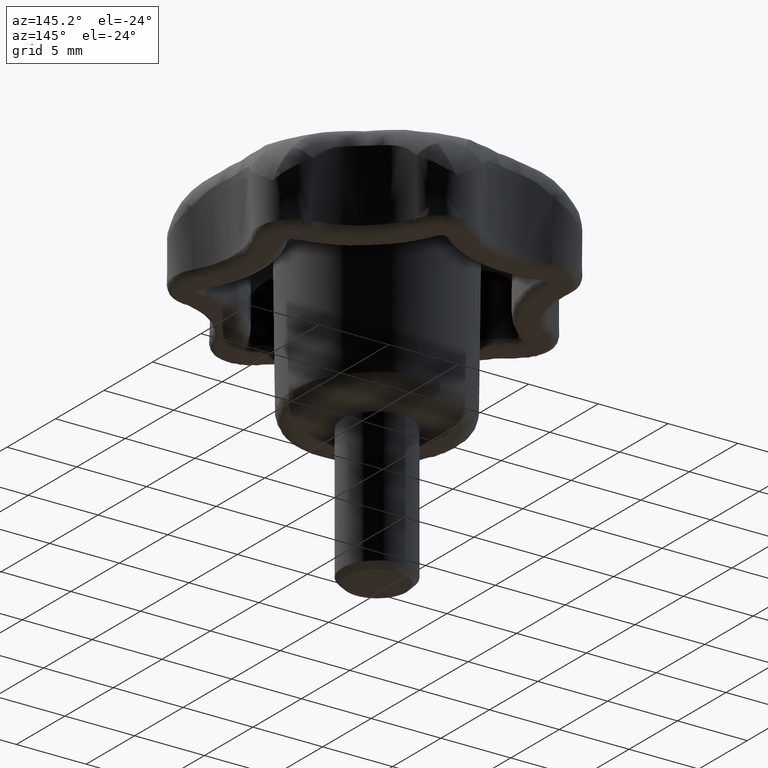
[diagram: clean part render]
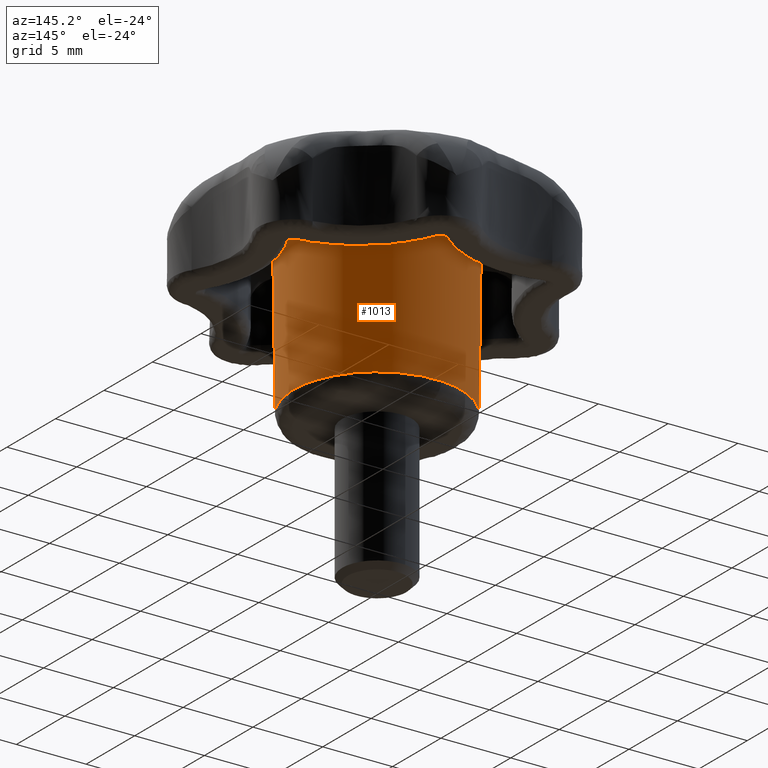
[diagram: same view with one face highlighted and labeled with its STEP entity id]
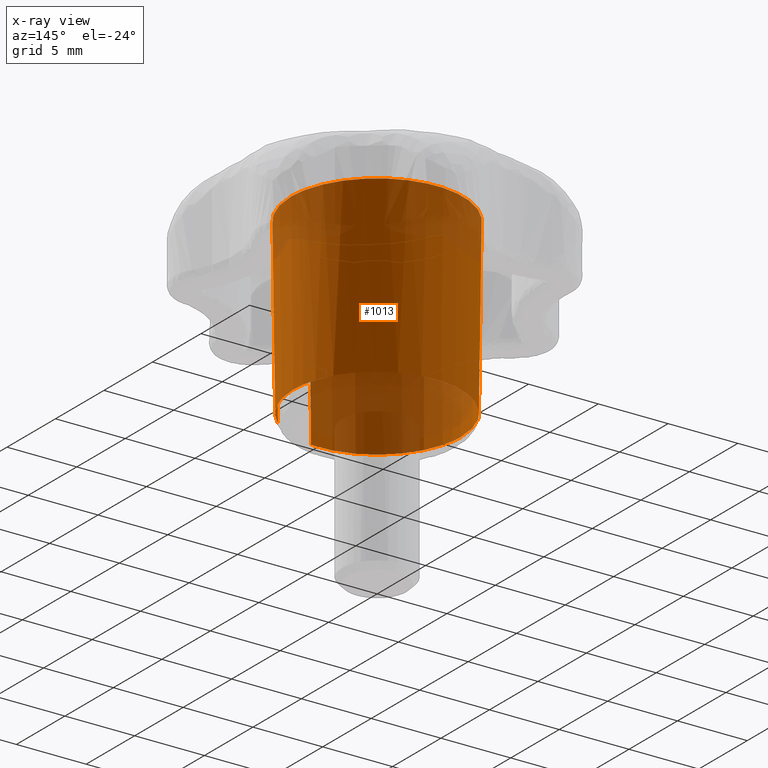
[diagram: x-ray of the same camera — body ghosted, the highlighted face saturated]
A machine part, auxiliary view. The second image highlights one B-rep face of the part: STEP entity #1013.
The next image is the same camera in x-ray: the body ghosted, the highlighted face saturated — about 38% of this face is hidden behind the body in this view.
In plain terms, the highlighted face is a freeform B-spline surface patch.
Its self-contained STEP definition (entity closure, byte-faithful):
#843=CARTESIAN_POINT('',(3.944172478707790,-4.532687497300083,-7.322148561508060));
#844=CARTESIAN_POINT('',(6.277231158324103,-2.502548459293557,-7.322148561508059));
#845=CARTESIAN_POINT('',(5.980811571360390,0.575886653655120,-7.322148561508059));
#846=CARTESIAN_POINT('',(5.404924917705270,6.556698225015510,-7.322148561508059));
#847=CARTESIAN_POINT('',(-0.575886653655120,5.980811571360390,-7.322148561508059));
#848=CARTESIAN_POINT('',(-6.556698225015510,5.404924917705270,-7.322148561508059));
#849=CARTESIAN_POINT('',(-5.980811571360390,-0.575886653655120,-7.322148561508059));
#850=CARTESIAN_POINT('',(-5.404924917705270,-6.556698225015510,-7.322148561508059));
#851=CARTESIAN_POINT('',(0.575886653655120,-5.980811571360390,-7.322148561508059));
#852=CARTESIAN_POINT('',(4.050949741576948,-4.655397132088043,5.690874260871853));
#853=CARTESIAN_POINT('',(6.447169355779006,-2.570297848074938,5.690874260871852));
#854=CARTESIAN_POINT('',(6.142725050746383,0.591477148475549,5.690874260871852));
#855=CARTESIAN_POINT('',(5.551247902270834,6.734202199221930,5.690874260871852));
#856=CARTESIAN_POINT('',(-0.591477148475549,6.142725050746383,5.690874260871852));
#857=CARTESIAN_POINT('',(-6.734202199221930,5.551247902270834,5.690874260871852));
#858=CARTESIAN_POINT('',(-6.142725050746383,-0.591477148475549,5.690874260871852));
#859=CARTESIAN_POINT('',(-5.551247902270834,-6.734202199221930,5.690874260871852));
#860=CARTESIAN_POINT('',(0.591477148475549,-6.142725050746383,5.690874260871852));
#868=(BOUNDED_SURFACE()B_SPLINE_SURFACE(2,1,((#843,#852),(#844,#853),(#845,#854),(#846,#855),(#847,#856),(#848,#857),(#849,#858),(#850,#859),(#851,#860)),.UNSPECIFIED.,.F.,.F.,.U.)B_SPLINE_SURFACE_WITH_KNOTS((3,2,2,2,3),(2,2),(0.0,6.134803480556286,16.359475948150099,26.584148415743911,36.808820883337717),(0.0,13.014039419569780),.UNSPECIFIED.)GEOMETRIC_REPRESENTATION_ITEM()RATIONAL_B_SPLINE_SURFACE(((0.859411254969543,0.859411254969543),(0.824264068711928,0.824264068711928),(1.0,1.0),(0.707106781186548,0.707106781186548),(1.0,1.0),(0.707106781186548,0.707106781186548),(1.0,1.0),(0.707106781186548,0.707106781186548),(1.0,1.0)))REPRESENTATION_ITEM('')SURFACE());
#869=CARTESIAN_POINT('',(6.012344000000111,0.0,-7.012498999999910));
#870=VERTEX_POINT('',#869);
#871=CARTESIAN_POINT('',(3.946712926027035,-4.535607724337785,-7.012499164965030));
#872=VERTEX_POINT('',#871);
#873=CARTESIAN_POINT('',(6.012344000000111,0.0,-7.012498999999910));
#874=CARTESIAN_POINT('',(6.012344000000111,-2.738174600577706,-7.012498999999912));
#875=CARTESIAN_POINT('',(3.946712926027036,-4.535607724337786,-7.012499164965030));
#883=(BOUNDED_CURVE()B_SPLINE_CURVE(2,(#873,#874,#875),.UNSPECIFIED.,.F.,.U.)B_SPLINE_CURVE_WITH_KNOTS((3,3),(0.500000000000000,0.635463014936708),.UNSPECIFIED.)CURVE()GEOMETRIC_REPRESENTATION_ITEM()RATIONAL_B_SPLINE_CURVE((1.0,0.841295206100052,0.854579451132870))REPRESENTATION_ITEM(''));
#884=EDGE_CURVE('',#870,#872,#883,.T.);
#885=ORIENTED_EDGE('',*,*,#884,.F.);
#886=CARTESIAN_POINT('',(-0.419260292708635,5.997707936092185,-7.012498999311438));
#887=VERTEX_POINT('',#886);
#888=CARTESIAN_POINT('',(-0.419260292708635,5.997707936092186,-7.012498999311440));
#889=CARTESIAN_POINT('',(-0.209885613401548,6.012344000000111,-7.012498999999910));
#890=CARTESIAN_POINT('',(0.0,6.012344000000111,-7.012498999999910));
#891=CARTESIAN_POINT('',(6.012344000000110,6.012344000000110,-7.012498999999909));
#892=CARTESIAN_POINT('',(6.012344000000111,0.0,-7.012498999999910));
#900=(BOUNDED_CURVE()B_SPLINE_CURVE(2,(#888,#889,#890,#891,#892),.UNSPECIFIED.,.F.,.U.)B_SPLINE_CURVE_WITH_KNOTS((3,2,3),(0.237833686533596,0.250000000000000,0.500000000000000),.UNSPECIFIED.)CURVE()GEOMETRIC_REPRESENTATION_ITEM()RATIONAL_B_SPLINE_CURVE((0.972879876383814,0.985746277150927,1.0,0.707106781186547,1.0))REPRESENTATION_ITEM(''));
#901=EDGE_CURVE('',#887,#870,#900,.T.);
#902=ORIENTED_EDGE('',*,*,#901,.F.);
#903=CARTESIAN_POINT('',(-6.012344000000111,0.0,-7.012498999999910));
#904=VERTEX_POINT('',#903);
#905=CARTESIAN_POINT('',(-6.012344000000111,0.0,-7.012498999999910));
#906=CARTESIAN_POINT('',(-6.012344000000111,5.606732318392219,-7.012498999999909));
#907=CARTESIAN_POINT('',(-0.419260292708635,5.997707936092185,-7.012498999311438));
#915=(BOUNDED_CURVE()B_SPLINE_CURVE(2,(#905,#906,#907),.UNSPECIFIED.,.F.,.U.)B_SPLINE_CURVE_WITH_KNOTS((3,3),(0.0,0.237833686533597),.UNSPECIFIED.)CURVE()GEOMETRIC_REPRESENTATION_ITEM()RATIONAL_B_SPLINE_CURVE((1.0,0.721360504035621,0.972879876383814))REPRESENTATION_ITEM(''));
#916=EDGE_CURVE('',#904,#887,#915,.T.);
#917=ORIENTED_EDGE('',*,*,#916,.F.);
#918=CARTESIAN_POINT('',(-6.011869232829693,-0.075551353800041,-7.012498999311493));
#919=VERTEX_POINT('',#918);
#920=CARTESIAN_POINT('',(-6.011869232829693,-0.075551353800041,-7.012498999311494));
#921=CARTESIAN_POINT('',(-6.012344000000111,-0.037777168640943,-7.012498999999909));
#922=CARTESIAN_POINT('',(-6.012344000000111,0.0,-7.012498999999910));
#930=(BOUNDED_CURVE()B_SPLINE_CURVE(2,(#920,#921,#922),.UNSPECIFIED.,.F.,.U.)B_SPLINE_CURVE_WITH_KNOTS((3,3),(0.997784295920002,1.0),.UNSPECIFIED.)CURVE()GEOMETRIC_REPRESENTATION_ITEM()RATIONAL_B_SPLINE_CURVE((0.994854295640039,0.997404141200285,1.0))REPRESENTATION_ITEM(''));
#931=EDGE_CURVE('',#919,#904,#930,.T.);
#932=ORIENTED_EDGE('',*,*,#931,.F.);
#933=CARTESIAN_POINT('',(0.576250075798280,-5.984665085467016,-7.012499260891778));
#934=VERTEX_POINT('',#933);
#935=CARTESIAN_POINT('',(0.576250075798280,-5.984665085467016,-7.012499260891778));
#936=CARTESIAN_POINT('',(0.288789786019711,-6.012344000000111,-7.012498999999910));
#937=CARTESIAN_POINT('',(0.0,-6.012344000000111,-7.012498999999910));
#938=CARTESIAN_POINT('',(-5.937261426648448,-6.012344000000110,-7.012498999999909));
#939=CARTESIAN_POINT('',(-6.011869232829693,-0.075551353800041,-7.012498999311494));
#947=(BOUNDED_CURVE()B_SPLINE_CURVE(2,(#935,#936,#937,#938,#939),.UNSPECIFIED.,.F.,.U.)B_SPLINE_CURVE_WITH_KNOTS((3,2,3),(0.733349119913495,0.750000000000000,0.997784295920001),.UNSPECIFIED.)CURVE()GEOMETRIC_REPRESENTATION_ITEM()RATIONAL_B_SPLINE_CURVE((0.963583126662804,0.980492280541546,1.0,0.709702639986264,0.994854295640036))REPRESENTATION_ITEM(''));
#948=EDGE_CURVE('',#934,#919,#947,.T.);
#949=ORIENTED_EDGE('',*,*,#948,.F.);
#950=CARTESIAN_POINT('',(0.591088502713179,-6.138776745641636,5.373483166893277));
#951=VERTEX_POINT('',#950);
#952=CARTESIAN_POINT('',(0.576250075798280,-5.984665085467016,-7.012499260891778));
#953=CARTESIAN_POINT('',(0.591088502713179,-6.138776745641636,5.373483166893277));
#954=QUASI_UNIFORM_CURVE('',1,(#952,#953),.UNSPECIFIED.,.F.,.U.);
#955=EDGE_CURVE('',#934,#951,#954,.T.);
#956=ORIENTED_EDGE('',*,*,#955,.T.);
#957=CARTESIAN_POINT('',(-6.167168361264539,0.0,5.373483460326000));
#958=VERTEX_POINT('',#957);
#959=CARTESIAN_POINT('',(0.591088502713179,-6.138776745641636,5.373483166893277));
#960=CARTESIAN_POINT('',(0.296226115268660,-6.167168361264539,5.373483460326001));
#961=CARTESIAN_POINT('',(0.0,-6.167168361264539,5.373483460326000));
#962=CARTESIAN_POINT('',(-6.167168361264539,-6.167168361264539,5.373483460325999));
#963=CARTESIAN_POINT('',(-6.167168361264539,0.0,5.373483460326000));
#971=(BOUNDED_CURVE()B_SPLINE_CURVE(2,(#959,#960,#961,#962,#963),.UNSPECIFIED.,.F.,.U.)B_SPLINE_CURVE_WITH_KNOTS((3,2,3),(0.733349137555922,0.750000000000000,1.0),.UNSPECIFIED.)CURVE()GEOMETRIC_REPRESENTATION_ITEM()RATIONAL_B_SPLINE_CURVE((0.963583162494970,0.980492301210936,1.0,0.707106781186548,1.0))REPRESENTATION_ITEM(''));
#972=EDGE_CURVE('',#951,#958,#971,.T.);
#973=ORIENTED_EDGE('',*,*,#972,.T.);
#974=CARTESIAN_POINT('',(6.167168361264539,0.0,5.373483460326000));
#975=VERTEX_POINT('',#974);
#976=CARTESIAN_POINT('',(-6.167168361264539,0.0,5.373483460326000));
#977=CARTESIAN_POINT('',(-6.167168361264539,6.167168361264539,5.373483460325999));
#978=CARTESIAN_POINT('',(0.0,6.167168361264539,5.373483460326000));
#979=CARTESIAN_POINT('',(6.167168361264539,6.167168361264539,5.373483460325999));
#980=CARTESIAN_POINT('',(6.167168361264539,0.0,5.373483460326000));
#988=(BOUNDED_CURVE()B_SPLINE_CURVE(2,(#976,#977,#978,#979,#980),.UNSPECIFIED.,.F.,.U.)B_SPLINE_CURVE_WITH_KNOTS((3,2,3),(0.0,0.250000000000000,0.500000000000000),.UNSPECIFIED.)CURVE()GEOMETRIC_REPRESENTATION_ITEM()RATIONAL_B_SPLINE_CURVE((1.0,0.707106781186548,1.0,0.707106781186548,1.0))REPRESENTATION_ITEM(''));
#989=EDGE_CURVE('',#958,#975,#988,.T.);
#990=ORIENTED_EDGE('',*,*,#989,.T.);
#991=CARTESIAN_POINT('',(4.048344640766153,-4.652404884435452,5.373483090350323));
#992=VERTEX_POINT('',#991);
#993=CARTESIAN_POINT('',(6.167168361264539,0.0,5.373483460326000));
#994=CARTESIAN_POINT('',(6.167168361264539,-2.808685595561269,5.373483460326001));
#995=CARTESIAN_POINT('',(4.048344640766153,-4.652404884435452,5.373483090350323));
#1003=(BOUNDED_CURVE()B_SPLINE_CURVE(2,(#993,#994,#995),.UNSPECIFIED.,.F.,.U.)B_SPLINE_CURVE_WITH_KNOTS((3,3),(0.500000000000000,0.635463016448819),.UNSPECIFIED.)CURVE()GEOMETRIC_REPRESENTATION_ITEM()RATIONAL_B_SPLINE_CURVE((1.0,0.841295204328503,0.854579451429442))REPRESENTATION_ITEM(''));
#1004=EDGE_CURVE('',#975,#992,#1003,.T.);
#1005=ORIENTED_EDGE('',*,*,#1004,.T.);
#1006=CARTESIAN_POINT('',(3.946712926027035,-4.535607724337785,-7.012499164965030));
#1007=CARTESIAN_POINT('',(4.048344640766153,-4.652404884435452,5.373483090350323));
#1008=QUASI_UNIFORM_CURVE('',1,(#1006,#1007),.UNSPECIFIED.,.F.,.U.);
#1009=EDGE_CURVE('',#872,#992,#1008,.T.);
#1010=ORIENTED_EDGE('',*,*,#1009,.F.);
#1011=EDGE_LOOP('',(#885,#902,#917,#932,#949,#956,#973,#990,#1005,#1010));
#1012=FACE_OUTER_BOUND('',#1011,.T.);
#1013=ADVANCED_FACE('',(#1012),#868,.T.);